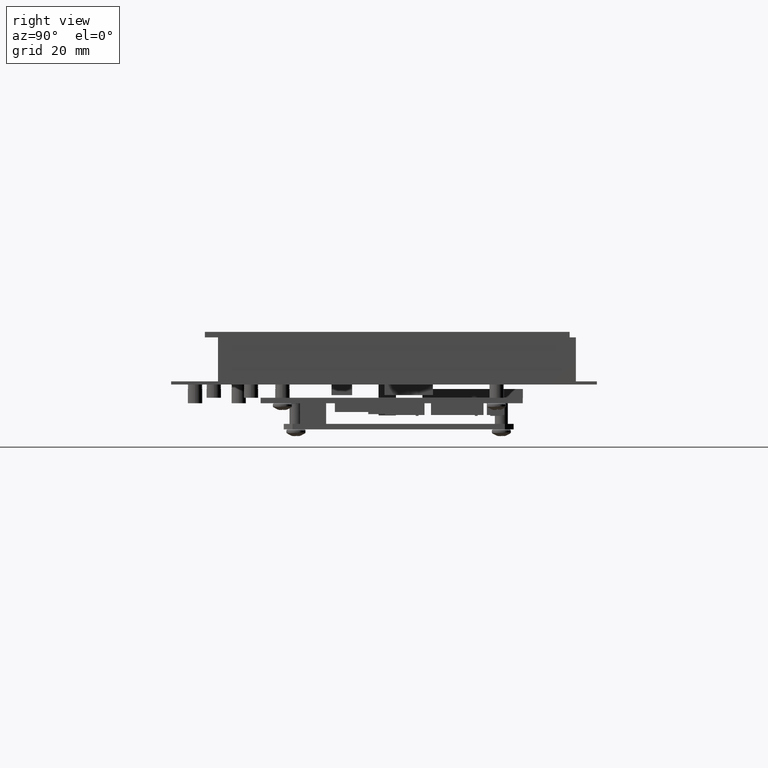
[diagram: clean part render]
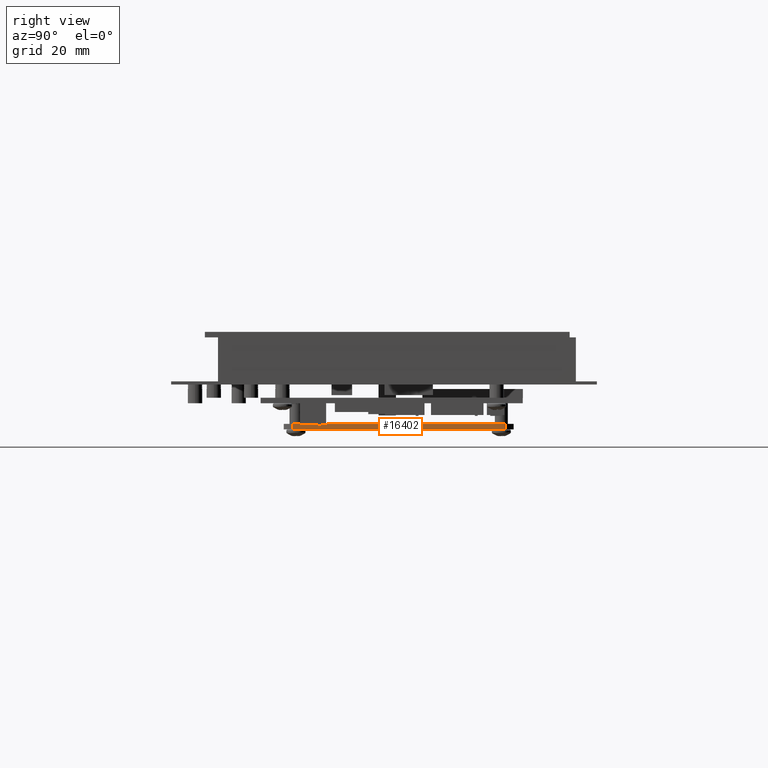
[diagram: same view with one face highlighted and labeled with its STEP entity id]
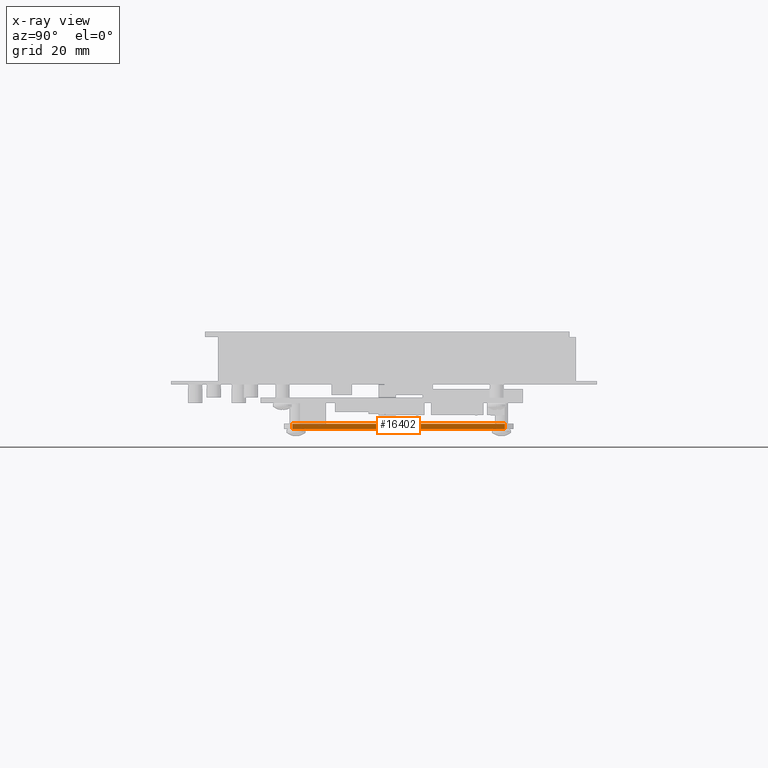
[diagram: x-ray of the same camera — body ghosted, the highlighted face saturated]
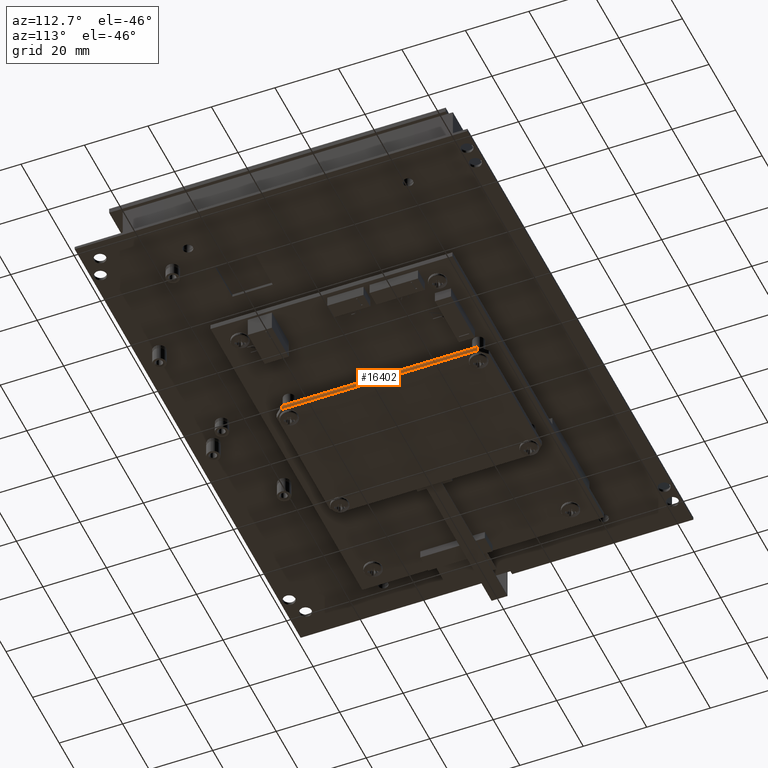
[diagram: same view with one face highlighted and labeled with its STEP entity id]
A machine part, right view. The second image highlights one B-rep face of the part: STEP entity #16402.
The next image is the same camera in x-ray: the body ghosted, the highlighted face saturated — about 4% of this face is hidden behind the body in this view.
A second angle (auxiliary view) of the same face is appended — the face is thin or edge-on in the first view.
In plain terms, the highlighted planar face has unit normal (-1, -0, -0).
Its self-contained STEP definition (entity closure, byte-faithful):
#797 = EDGE_CURVE ( 'NONE', #6051, #6046, #19447, .T. ) ;
#812 = EDGE_CURVE ( 'NONE', #6025, #6046, #19477, .T. ) ;
#814 = EDGE_CURVE ( 'NONE', #6051, #6031, #19469, .T. ) ;
#1032 = EDGE_CURVE ( 'NONE', #6031, #6025, #19750, .T. ) ;
#1590 = EDGE_LOOP ( 'NONE', ( #5545, #5546, #5547, #5548 ) ) ;
#2800 = VECTOR ( 'NONE', #19458, 39.37007874015748100 ) ;
#5545 = ORIENTED_EDGE ( 'NONE', *, *, #814, .T. ) ;
#5546 = ORIENTED_EDGE ( 'NONE', *, *, #1032, .T. ) ;
#5547 = ORIENTED_EDGE ( 'NONE', *, *, #812, .T. ) ;
#5548 = ORIENTED_EDGE ( 'NONE', *, *, #797, .F. ) ;
#6025 = VERTEX_POINT ( 'NONE', #15020 ) ;
#6031 = VERTEX_POINT ( 'NONE', #15026 ) ;
#6046 = VERTEX_POINT ( 'NONE', #15041 ) ;
#6051 = VERTEX_POINT ( 'NONE', #15046 ) ;
#6207 = VECTOR ( 'NONE', #19779, 39.37007874015748100 ) ;
#7470 = VECTOR ( 'NONE', #19482, 39.37007874015748100 ) ;
#7729 = AXIS2_PLACEMENT_3D ( 'NONE', #11337, #11348, #11349 ) ;
#11337 = CARTESIAN_POINT ( 'NONE',  ( -1.019999999999995600, 0.3619999999999978800, -1.394999999999990900 ) ) ;
#11345 = FACE_OUTER_BOUND ( 'NONE', #1590, .T. ) ;
#11346 = PLANE ( 'NONE',  #7729 ) ;
#11348 = DIRECTION ( 'NONE',  ( 1.000000000000000000, 4.437342591868207200E-031, 2.714896467620573700E-030 ) ) ;
#11349 = DIRECTION ( 'NONE',  ( 2.714896467620573700E-030, 1.232595164407839700E-031, -1.000000000000000000 ) ) ;
#15020 = CARTESIAN_POINT ( 'NONE',  ( -1.019999999999996000, 0.2992204724409448000, 1.134999999999989400 ) ) ;
#15026 = CARTESIAN_POINT ( 'NONE',  ( -1.019999999999995600, 0.2992204724409438000, -1.294999999999991500 ) ) ;
#15041 = CARTESIAN_POINT ( 'NONE',  ( -1.019999999999996000, 0.3619999999999979300, 1.134999999999989400 ) ) ;
#15046 = CARTESIAN_POINT ( 'NONE',  ( -1.019999999999995600, 0.3619999999999979300, -1.294999999999991500 ) ) ;
#16402 = ADVANCED_FACE ( 'NONE', ( #11345 ), #11346, .F. ) ;
#19289 = VECTOR ( 'NONE', #19480, 39.37007874015748100 ) ;
#19447 = LINE ( 'NONE', #19457, #2800 ) ;
#19457 = CARTESIAN_POINT ( 'NONE',  ( -1.019999999999995600, 0.3619999999999978800, -1.394999999999990900 ) ) ;
#19458 = DIRECTION ( 'NONE',  ( -2.714896467620574000E-030, -1.232595164407839700E-031, 1.000000000000000000 ) ) ;
#19469 = LINE ( 'NONE', #19481, #7470 ) ;
#19477 = LINE ( 'NONE', #19479, #19289 ) ;
#19479 = CARTESIAN_POINT ( 'NONE',  ( -1.019999999999995600, 0.3619999999999979300, 1.134999999999990000 ) ) ;
#19480 = DIRECTION ( 'NONE',  ( 1.133987551255208500E-030, 1.000000000000000000, 1.232595164407835300E-031 ) ) ;
#19481 = CARTESIAN_POINT ( 'NONE',  ( -1.019999999999995600, 0.3619999999999979300, -1.294999999999991500 ) ) ;
#19482 = DIRECTION ( 'NONE',  ( -1.133987551255208500E-030, -1.000000000000000000, -1.232595164407835300E-031 ) ) ;
#19750 = LINE ( 'NONE', #19778, #6207 ) ;
#19778 = CARTESIAN_POINT ( 'NONE',  ( -1.019999999999995600, 0.2992204724409438000, -1.294999999999991500 ) ) ;
#19779 = DIRECTION ( 'NONE',  ( -5.621086406716904300E-017, -1.232595164407839700E-031, 1.000000000000000000 ) ) ;